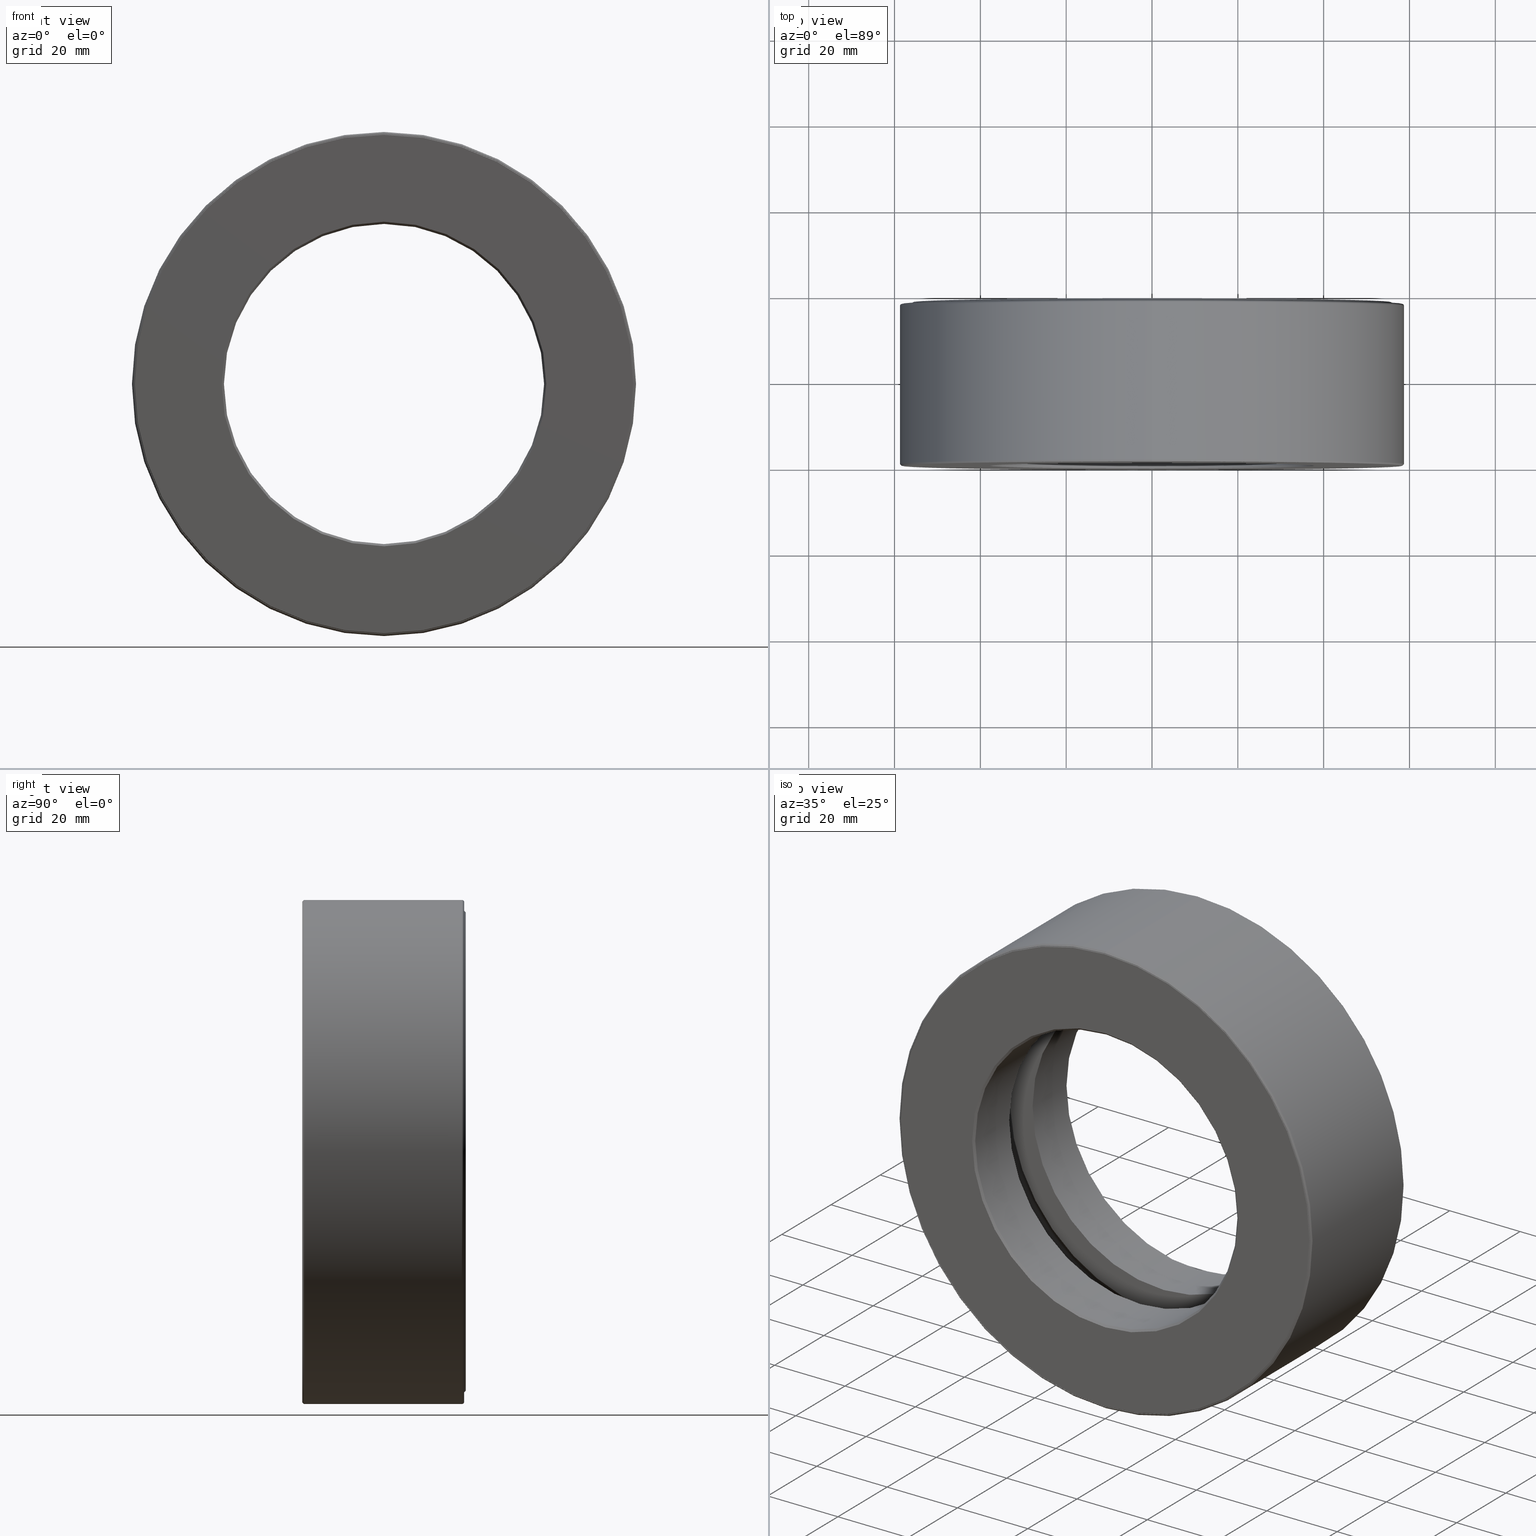
[diagram: canonical four-view strip — front | top / right | iso, engineering-drawing reading convention]
A machine part, canonical four-view strip (front | top / right | iso — engineering-drawing reading convention). The complete STEP part file that produces these views, byte-faithful:
ISO-10303-21;
HEADER;
FILE_DESCRIPTION (( 'STEP AP203' ),
    '1' );
FILE_NAME ('T-100-43.step',
    '2016-06-29T18:27:38',
    ( '' ),
    ( '' ),
    'SwSTEP 2.0',
    'SolidWorks 2016',
    '' );
FILE_SCHEMA (( 'CONFIG_CONTROL_DESIGN' ));
ENDSEC;

DATA;
#1 = CARTESIAN_POINT ( 'NONE',  ( -2.064512915657944700E-014, 0.7499999999999998900, -1.970999999999999900 ) ) ;
#2 = ORIENTED_EDGE ( 'NONE', *, *, #28, .F. ) ;
#3 = CALENDAR_DATE ( 2016, 29, 6 ) ;
#4 = DIRECTION ( 'NONE',  ( 0.0000000000000000000, 0.0000000000000000000, 1.000000000000000000 ) ) ;
#5 = DIRECTION ( 'NONE',  ( -0.0000000000000000000, 1.000000000000000000, -0.0000000000000000000 ) ) ;
#6 = VERTEX_POINT ( 'NONE', #209 ) ;
#7 = AXIS2_PLACEMENT_3D ( 'NONE', #354, #162, #494 ) ;
#8 = ORIENTED_EDGE ( 'NONE', *, *, #512, .F. ) ;
#9 = DIRECTION ( 'NONE',  ( 0.0000000000000000000, -1.000000000000000000, 0.0000000000000000000 ) ) ;
#10 = DIRECTION ( 'NONE',  ( 0.0000000000000000000, 0.0000000000000000000, 1.000000000000000000 ) ) ;
#11 = LOCAL_TIME ( 14, 27, 38.00000000000000000, #121 ) ;
#12 = CIRCLE ( 'NONE', #32, 2.232499999999999900 ) ;
#13 = PLANE ( 'NONE',  #533 ) ;
#14 = DIRECTION ( 'NONE',  ( -0.0000000000000000000, 1.000000000000000000, -0.0000000000000000000 ) ) ;
#15 = DIRECTION ( 'NONE',  ( -0.0000000000000000000, 1.000000000000000000, -0.0000000000000000000 ) ) ;
#16 = ADVANCED_BREP_SHAPE_REPRESENTATION ( 'T-100-43', ( #220, #602, #444, #552, #90, #451, #251 ), #270 ) ;
#17 = ADVANCED_FACE ( 'NONE', ( ), #101, .T. ) ;
#18 = DIRECTION ( 'NONE',  ( 0.0000000000000000000, 0.0000000000000000000, 1.000000000000000000 ) ) ;
#19 = PRODUCT_DEFINITION_SHAPE ( 'NONE', 'NONE',  #361 ) ;
#20 = FACE_OUTER_BOUND ( 'NONE', #373, .T. ) ;
#21 = CARTESIAN_POINT ( 'NONE',  ( 0.0000000000000000000, 0.0000000000000000000, 0.0000000000000000000 ) ) ;
#22 = EDGE_LOOP ( 'NONE', ( #310 ) ) ;
#23 = DIRECTION ( 'NONE',  ( 0.0000000000000000000, 0.0000000000000000000, 1.000000000000000000 ) ) ;
#24 = ORIENTED_EDGE ( 'NONE', *, *, #495, .T. ) ;
#25 = CC_DESIGN_PERSON_AND_ORGANIZATION_ASSIGNMENT ( #262, #226, ( #287 ) ) ;
#26 = FACE_BOUND ( 'NONE', #498, .T. ) ;
#27 = FACE_BOUND ( 'NONE', #583, .T. ) ;
#28 = EDGE_CURVE ( 'NONE', #504, #504, #148, .T. ) ;
#29 = PERSON_AND_ORGANIZATION ( #197, #545 ) ;
#30 = VERTEX_POINT ( 'NONE', #124 ) ;
#31 = CARTESIAN_POINT ( 'NONE',  ( 0.0000000000000000000, 1.484999999999999900, 2.292500000000000000 ) ) ;
#32 = AXIS2_PLACEMENT_3D ( 'NONE', #72, #456, #549 ) ;
#33 = EDGE_LOOP ( 'NONE', ( #537 ) ) ;
#34 = CARTESIAN_POINT ( 'NONE',  ( 0.0000000000000000000, 1.412000000000000600, 2.285499999999999400 ) ) ;
#35 = DIRECTION ( 'NONE',  ( -0.0000000000000000000, 1.000000000000000000, -0.0000000000000000000 ) ) ;
#36 = CARTESIAN_POINT ( 'NONE',  ( 0.0000000000000000000, 0.005000000000000682700, 2.292499999999999500 ) ) ;
#37 = CIRCLE ( 'NONE', #40, 1.720999999999999900 ) ;
#38 = FACE_BOUND ( 'NONE', #125, .T. ) ;
#39 = ADVANCED_FACE ( 'NONE', ( #606, #172 ), #447, .F. ) ;
#40 = AXIS2_PLACEMENT_3D ( 'NONE', #576, #530, #437 ) ;
#41 = FACE_OUTER_BOUND ( 'NONE', #343, .T. ) ;
#42 = ORIENTED_EDGE ( 'NONE', *, *, #318, .F. ) ;
#43 = PLANE ( 'NONE',  #455 ) ;
#44 = EDGE_LOOP ( 'NONE', ( #406 ) ) ;
#45 = ADVANCED_FACE ( 'NONE', ( #263, #200 ), #321, .T. ) ;
#46 = DIRECTION ( 'NONE',  ( 0.0000000000000000000, 0.0000000000000000000, 1.000000000000000000 ) ) ;
#47 = PERSON_AND_ORGANIZATION_ROLE ( 'design_supplier' ) ;
#48 = ADVANCED_FACE ( 'NONE', ( #75, #27 ), #43, .T. ) ;
#49 = CARTESIAN_POINT ( 'NONE',  ( 0.0000000000000000000, 1.484999999999999900, 0.0000000000000000000 ) ) ;
#50 = AXIS2_PLACEMENT_3D ( 'NONE', #145, #54, #149 ) ;
#51 = FACE_OUTER_BOUND ( 'NONE', #22, .T. ) ;
#52 = AXIS2_PLACEMENT_3D ( 'NONE', #524, #158, #196 ) ;
#53 = CLOSED_SHELL ( 'NONE', ( #17 ) ) ;
#54 = DIRECTION ( 'NONE',  ( -0.0000000000000000000, 1.000000000000000000, -0.0000000000000000000 ) ) ;
#55 = APPROVAL_DATE_TIME ( #116, #459 ) ;
#56 = EDGE_CURVE ( 'NONE', #313, #313, #128, .T. ) ;
#57 = VERTEX_POINT ( 'NONE', #269 ) ;
#58 = FACE_OUTER_BOUND ( 'NONE', #559, .T. ) ;
#59 = EDGE_LOOP ( 'NONE', ( #140 ) ) ;
#60 = EDGE_LOOP ( 'NONE', ( #389 ) ) ;
#61 = DIRECTION ( 'NONE',  ( -0.0000000000000000000, 1.000000000000000000, -0.0000000000000000000 ) ) ;
#62 = DIRECTION ( 'NONE',  ( 0.0000000000000000000, 0.0000000000000000000, 1.000000000000000000 ) ) ;
#63 = FACE_BOUND ( 'NONE', #322, .T. ) ;
#64 = ORIENTED_EDGE ( 'NONE', *, *, #570, .T. ) ;
#65 = CARTESIAN_POINT ( 'NONE',  ( 0.0000000000000000000, 1.464999999999999900, 0.0000000000000000000 ) ) ;
#66 = CARTESIAN_POINT ( 'NONE',  ( 0.0000000000000000000, 0.7499999999999998900, 0.0000000000000000000 ) ) ;
#67 = VERTEX_POINT ( 'NONE', #36 ) ;
#68 = FACE_OUTER_BOUND ( 'NONE', #316, .T. ) ;
#69 = ORIENTED_EDGE ( 'NONE', *, *, #481, .F. ) ;
#70 = DIRECTION ( 'NONE',  ( -1.000000000000000000, 0.0000000000000000000, 3.491481338843134500E-015 ) ) ;
#71 = DIRECTION ( 'NONE',  ( 0.0000000000000000000, 0.0000000000000000000, 1.000000000000000000 ) ) ;
#72 = CARTESIAN_POINT ( 'NONE',  ( 0.0000000000000000000, 1.464999999999999900, 0.0000000000000000000 ) ) ;
#73 = CYLINDRICAL_SURFACE ( 'NONE', #330, 1.468750000000000000 ) ;
#74 = DIRECTION ( 'NONE',  ( -0.0000000000000000000, 1.000000000000000000, -0.0000000000000000000 ) ) ;
#75 = FACE_OUTER_BOUND ( 'NONE', #239, .T. ) ;
#76 =( LENGTH_UNIT ( ) NAMED_UNIT ( * ) SI_UNIT ( $, .METRE. ) );
#77 = AXIS2_PLACEMENT_3D ( 'NONE', #523, #15, #297 ) ;
#78 = EDGE_LOOP ( 'NONE', ( #479 ) ) ;
#79 =( NAMED_UNIT ( * ) SI_UNIT ( $, .STERADIAN. ) SOLID_ANGLE_UNIT ( ) );
#80 = AXIS2_PLACEMENT_3D ( 'NONE', #49, #232, #566 ) ;
#81 = CARTESIAN_POINT ( 'NONE',  ( 0.0000000000000000000, 0.02000000000000033300, 1.468749999999999800 ) ) ;
#82 = ADVANCED_FACE ( 'NONE', ( #58, #412 ), #236, .F. ) ;
#83 = FACE_BOUND ( 'NONE', #592, .T. ) ;
#84 = CIRCLE ( 'NONE', #104, 2.197499999999999800 ) ;
#85 = CLOSED_SHELL ( 'NONE', ( #132, #228, #324, #327, #414, #243, #478, #185, #553, #87, #39, #45, #82, #217, #288, #385 ) ) ;
#86 = DIRECTION ( 'NONE',  ( 0.0000000000000000000, 0.0000000000000000000, 1.000000000000000000 ) ) ;
#87 = ADVANCED_FACE ( 'NONE', ( #462, #514 ), #13, .F. ) ;
#88 = ORIENTED_EDGE ( 'NONE', *, *, #249, .T. ) ;
#89 = EDGE_LOOP ( 'NONE', ( #42 ) ) ;
#90 = MANIFOLD_SOLID_BREP ( 'BALLS[2]', #527 ) ;
#91 = EDGE_CURVE ( 'NONE', #174, #174, #314, .T. ) ;
#92 = DIRECTION ( 'NONE',  ( 0.0000000000000000000, 0.0000000000000000000, 1.000000000000000000 ) ) ;
#93 = DIRECTION ( 'NONE',  ( 0.0000000000000000000, 0.0000000000000000000, 1.000000000000000000 ) ) ;
#94 = APPROVAL ( #328, 'UNSPECIFIED' ) ;
#95 = CALENDAR_DATE ( 2016, 29, 6 ) ;
#96 = FACE_OUTER_BOUND ( 'NONE', #257, .T. ) ;
#97 = DIRECTION ( 'NONE',  ( 0.0000000000000000000, 0.0000000000000000000, -1.000000000000000000 ) ) ;
#98 = ORIENTED_EDGE ( 'NONE', *, *, #284, .F. ) ;
#99 = CARTESIAN_POINT ( 'NONE',  ( 0.0000000000000000000, 0.02000000000000033300, 0.0000000000000000000 ) ) ;
#100 = FACE_OUTER_BOUND ( 'NONE', #307, .T. ) ;
#101 = SPHERICAL_SURFACE ( 'NONE', #380, 0.3125000000000000000 ) ;
#102 = ORIENTED_EDGE ( 'NONE', *, *, #345, .T. ) ;
#103 = DIRECTION ( 'NONE',  ( -0.0000000000000000000, 1.000000000000000000, -0.0000000000000000000 ) ) ;
#104 = AXIS2_PLACEMENT_3D ( 'NONE', #305, #528, #23 ) ;
#105 = DIRECTION ( 'NONE',  ( -0.0000000000000000000, 1.000000000000000000, -0.0000000000000000000 ) ) ;
#106 = ORIENTED_EDGE ( 'NONE', *, *, #333, .T. ) ;
#107 = PLANE ( 'NONE',  #590 ) ;
#108 = VERTEX_POINT ( 'NONE', #413 ) ;
#109 = DIRECTION ( 'NONE',  ( -0.0000000000000000000, 1.000000000000000000, -0.0000000000000000000 ) ) ;
#110 = FACE_OUTER_BOUND ( 'NONE', #567, .T. ) ;
#111 = CARTESIAN_POINT ( 'NONE',  ( 0.0000000000000000000, 1.500000000000000200, 0.0000000000000000000 ) ) ;
#112 = EDGE_LOOP ( 'NONE', ( #8 ) ) ;
#113 = AXIS2_PLACEMENT_3D ( 'NONE', #252, #253, #62 ) ;
#114 = CARTESIAN_POINT ( 'NONE',  ( 0.0000000000000000000, 1.464999999999999900, 0.0000000000000000000 ) ) ;
#115 = DIRECTION ( 'NONE',  ( 0.0000000000000000000, 0.0000000000000000000, 1.000000000000000000 ) ) ;
#116 = DATE_AND_TIME ( #344, #234 ) ;
#117 = VERTEX_POINT ( 'NONE', #596 ) ;
#118 = CONICAL_SURFACE ( 'NONE', #515, 2.197499999999999800, 0.7853981633974498300 ) ;
#119 = FACE_BOUND ( 'NONE', #486, .T. ) ;
#120 = CARTESIAN_POINT ( 'NONE',  ( 0.0000000000000000000, 0.5624999999999998900, 0.0000000000000000000 ) ) ;
#121 = COORDINATED_UNIVERSAL_TIME_OFFSET ( 5, 0, .BEHIND. ) ;
#122 = FACE_BOUND ( 'NONE', #178, .T. ) ;
#123 = AXIS2_PLACEMENT_3D ( 'NONE', #560, #177, #71 ) ;
#124 = CARTESIAN_POINT ( 'NONE',  ( 0.0000000000000000000, 0.9374999999999998900, 2.221000000000000100 ) ) ;
#125 = EDGE_LOOP ( 'NONE', ( #473 ) ) ;
#126 = VERTEX_POINT ( 'NONE', #408 ) ;
#127 = CIRCLE ( 'NONE', #50, 2.221000000000000100 ) ;
#128 = CIRCLE ( 'NONE', #425, 2.287499999999999600 ) ;
#129 = ADVANCED_FACE ( 'NONE', ( ), #184, .T. ) ;
#130 = CARTESIAN_POINT ( 'NONE',  ( 0.0000000000000000000, -1.259211184579621700E-016, 2.297499999999999900 ) ) ;
#131 = PERSON_AND_ORGANIZATION_ROLE ( 'classification_officer' ) ;
#132 = ADVANCED_FACE ( 'NONE', ( #477, #165 ), #341, .F. ) ;
#133 = DIRECTION ( 'NONE',  ( -0.0000000000000000000, 1.000000000000000000, -0.0000000000000000000 ) ) ;
#134 = AXIS2_PLACEMENT_3D ( 'NONE', #448, #445, #260 ) ;
#135 = PERSON_AND_ORGANIZATION ( #197, #545 ) ;
#136 = CIRCLE ( 'NONE', #143, 2.292500000000000000 ) ;
#137 = ORIENTED_EDGE ( 'NONE', *, *, #304, .T. ) ;
#138 = DIRECTION ( 'NONE',  ( 0.0000000000000000000, 0.0000000000000000000, 1.000000000000000000 ) ) ;
#139 = DIRECTION ( 'NONE',  ( -0.0000000000000000000, 1.000000000000000000, 0.0000000000000000000 ) ) ;
#140 = ORIENTED_EDGE ( 'NONE', *, *, #575, .T. ) ;
#141 = DIRECTION ( 'NONE',  ( 0.0000000000000000000, 0.0000000000000000000, -1.000000000000000000 ) ) ;
#142 = PLANE ( 'NONE',  #603 ) ;
#143 = AXIS2_PLACEMENT_3D ( 'NONE', #169, #546, #138 ) ;
#144 = COORDINATED_UNIVERSAL_TIME_OFFSET ( 5, 0, .BEHIND. ) ;
#145 = CARTESIAN_POINT ( 'NONE',  ( 0.0000000000000000000, 0.5624999999999998900, 0.0000000000000000000 ) ) ;
#146 = FACE_OUTER_BOUND ( 'NONE', #33, .T. ) ;
#147 = CARTESIAN_POINT ( 'NONE',  ( -3.637515780592931200E-032, -6.242699516771851800E-017, 0.0000000000000000000 ) ) ;
#148 = CIRCLE ( 'NONE', #438, 1.488750000000000200 ) ;
#149 = DIRECTION ( 'NONE',  ( 0.0000000000000000000, 0.0000000000000000000, 1.000000000000000000 ) ) ;
#150 = CARTESIAN_POINT ( 'NONE',  ( 0.0000000000000000000, 1.484999999999999900, 2.232499999999999900 ) ) ;
#151 = EDGE_CURVE ( 'NONE', #555, #555, #371, .T. ) ;
#152 = CARTESIAN_POINT ( 'NONE',  ( 1.985354646558334900E-015, 0.9375000000000000000, 0.0000000000000000000 ) ) ;
#153 = PERSON_AND_ORGANIZATION ( #197, #545 ) ;
#154 = CONICAL_SURFACE ( 'NONE', #311, 1.468750000000000000, 0.7853981633974482800 ) ;
#155 = CARTESIAN_POINT ( 'NONE',  ( 0.0000000000000000000, 0.0000000000000000000, 0.0000000000000000000 ) ) ;
#156 = PRODUCT ( 'T-100-43', 'T-100-43', '', ( #461 ) ) ;
#157 = AXIS2_PLACEMENT_3D ( 'NONE', #21, #61, #295 ) ;
#158 = DIRECTION ( 'NONE',  ( -0.0000000000000000000, 1.000000000000000000, -0.0000000000000000000 ) ) ;
#159 = ORIENTED_EDGE ( 'NONE', *, *, #245, .F. ) ;
#160 = DIRECTION ( 'NONE',  ( 0.0000000000000000000, 0.0000000000000000000, 1.000000000000000000 ) ) ;
#161 = DIRECTION ( 'NONE',  ( -0.0000000000000000000, 1.000000000000000000, -0.0000000000000000000 ) ) ;
#162 = DIRECTION ( 'NONE',  ( -0.0000000000000000000, 1.000000000000000000, -0.0000000000000000000 ) ) ;
#163 = DIRECTION ( 'NONE',  ( 0.0000000000000000000, -1.000000000000000000, 0.0000000000000000000 ) ) ;
#164 = CARTESIAN_POINT ( 'NONE',  ( 0.0000000000000000000, 0.5625000000000001100, 0.0000000000000000000 ) ) ;
#165 = FACE_OUTER_BOUND ( 'NONE', #195, .T. ) ;
#166 = ORIENTED_EDGE ( 'NONE', *, *, #56, .T. ) ;
#167 = ORIENTED_EDGE ( 'NONE', *, *, #407, .F. ) ;
#168 = ORIENTED_EDGE ( 'NONE', *, *, #210, .T. ) ;
#169 = CARTESIAN_POINT ( 'NONE',  ( 0.0000000000000000000, 1.484999999999999900, 0.0000000000000000000 ) ) ;
#170 = APPROVAL_PERSON_ORGANIZATION ( #362, #94, #510 ) ;
#171 = FACE_OUTER_BOUND ( 'NONE', #364, .T. ) ;
#172 = FACE_OUTER_BOUND ( 'NONE', #440, .T. ) ;
#173 = DIRECTION ( 'NONE',  ( 0.0000000000000000000, 0.0000000000000000000, 1.000000000000000000 ) ) ;
#174 = VERTEX_POINT ( 'NONE', #150 ) ;
#175 = VERTEX_POINT ( 'NONE', #266 ) ;
#176 = DIRECTION ( 'NONE',  ( 1.000000000000000000, 0.0000000000000000000, -1.047444401652940000E-014 ) ) ;
#177 = DIRECTION ( 'NONE',  ( -0.0000000000000000000, 1.000000000000000000, -0.0000000000000000000 ) ) ;
#178 = EDGE_LOOP ( 'NONE', ( #106 ) ) ;
#179 = AXIS2_PLACEMENT_3D ( 'NONE', #427, #14, #10 ) ;
#180 = DIRECTION ( 'NONE',  ( -3.491481338843134500E-015, 0.0000000000000000000, -1.000000000000000000 ) ) ;
#181 = CARTESIAN_POINT ( 'NONE',  ( 0.0000000000000000000, -1.248539903354370400E-016, 0.0000000000000000000 ) ) ;
#182 = VERTEX_POINT ( 'NONE', #212 ) ;
#183 = CYLINDRICAL_SURFACE ( 'NONE', #585, 2.292499999999999500 ) ;
#184 = SPHERICAL_SURFACE ( 'NONE', #224, 0.3125000000000000000 ) ;
#185 = ADVANCED_FACE ( 'NONE', ( #356, #588 ), #571, .T. ) ;
#186 = DIRECTION ( 'NONE',  ( 0.0000000000000000000, 0.0000000000000000000, 1.000000000000000000 ) ) ;
#187 = EDGE_LOOP ( 'NONE', ( #102 ) ) ;
#188 = CARTESIAN_POINT ( 'NONE',  ( 0.0000000000000000000, 1.500000000000000200, 0.0000000000000000000 ) ) ;
#189 = CARTESIAN_POINT ( 'NONE',  ( 0.0000000000000000000, 0.7499999999999998900, 0.0000000000000000000 ) ) ;
#190 = FACE_OUTER_BOUND ( 'NONE', #449, .T. ) ;
#191 = CONICAL_SURFACE ( 'NONE', #261, 1.468749999999999800, 0.7853981633974415100 ) ;
#192 = AXIS2_PLACEMENT_3D ( 'NONE', #471, #230, #292 ) ;
#193 = DIRECTION ( 'NONE',  ( 0.0000000000000000000, 0.0000000000000000000, 1.000000000000000000 ) ) ;
#194 = EDGE_LOOP ( 'NONE', ( #167 ) ) ;
#195 = EDGE_LOOP ( 'NONE', ( #64 ) ) ;
#196 = DIRECTION ( 'NONE',  ( 0.0000000000000000000, 0.0000000000000000000, 1.000000000000000000 ) ) ;
#197 = PERSON ( 'UNSPECIFIED', 'UNSPECIFIED', 'UNSPECIFIED', ('UNSPECIFIED'), ('UNSPECIFIED'), ('UNSPECIFIED') ) ;
#198 = VERTEX_POINT ( 'NONE', #363 ) ;
#199 = CIRCLE ( 'NONE', #233, 2.312500000000000000 ) ;
#200 = FACE_BOUND ( 'NONE', #540, .T. ) ;
#201 = ORIENTED_EDGE ( 'NONE', *, *, #570, .F. ) ;
#202 = EDGE_LOOP ( 'NONE', ( #418 ) ) ;
#203 = PLANE ( 'NONE',  #225 ) ;
#204 = VERTEX_POINT ( 'NONE', #81 ) ;
#205 = DIRECTION ( 'NONE',  ( 0.0000000000000000000, -1.000000000000000000, 0.0000000000000000000 ) ) ;
#206 = FACE_OUTER_BOUND ( 'NONE', #507, .T. ) ;
#207 = CIRCLE ( 'NONE', #240, 2.297499999999999900 ) ;
#208 = EDGE_LOOP ( 'NONE', ( #547 ) ) ;
#209 = CARTESIAN_POINT ( 'NONE',  ( 0.0000000000000000000, -1.252200340395746800E-016, 2.292499999999999500 ) ) ;
#210 = EDGE_CURVE ( 'NONE', #434, #434, #395, .T. ) ;
#211 = LOCAL_TIME ( 14, 27, 38.00000000000000000, #347 ) ;
#212 = CARTESIAN_POINT ( 'NONE',  ( 0.0000000000000000000, 0.5624999999999998900, 2.292499999999999500 ) ) ;
#213 = AXIS2_PLACEMENT_3D ( 'NONE', #423, #70, #180 ) ;
#214 = TOROIDAL_SURFACE ( 'NONE', #394, 2.292500000000000000, 0.02000000000000005900 ) ;
#215 = EDGE_LOOP ( 'NONE', ( #201 ) ) ;
#216 = CARTESIAN_POINT ( 'NONE',  ( 0.0000000000000000000, 1.464999999999999900, 2.292499999999999500 ) ) ;
#217 = ADVANCED_FACE ( 'NONE', ( #505, #119 ), #191, .F. ) ;
#218 = CARTESIAN_POINT ( 'NONE',  ( 0.0000000000000000000, 0.9374999999999998900, 1.720999999999999900 ) ) ;
#219 = CIRCLE ( 'NONE', #123, 2.285499999999999400 ) ;
#220 = MANIFOLD_SOLID_BREP ( 'Revolve2[1]', #85 ) ;
#221 = ORIENTED_EDGE ( 'NONE', *, *, #265, .T. ) ;
#222 = DATE_TIME_ROLE ( 'creation_date' ) ;
#223 = ORIENTED_EDGE ( 'NONE', *, *, #538, .F. ) ;
#224 = AXIS2_PLACEMENT_3D ( 'NONE', #286, #97, #339 ) ;
#225 = AXIS2_PLACEMENT_3D ( 'NONE', #403, #205, #586 ) ;
#226 = PERSON_AND_ORGANIZATION_ROLE ( 'creator' ) ;
#227 = CALENDAR_DATE ( 2016, 29, 6 ) ;
#228 = ADVANCED_FACE ( 'NONE', ( #536, #51 ), #142, .F. ) ;
#229 = PERSON_AND_ORGANIZATION_ROLE ( 'creator' ) ;
#230 = DIRECTION ( 'NONE',  ( -0.0000000000000000000, 1.000000000000000000, -0.0000000000000000000 ) ) ;
#231 = CLOSED_SHELL ( 'NONE', ( #129 ) ) ;
#232 = DIRECTION ( 'NONE',  ( 0.0000000000000000000, -1.000000000000000000, 0.0000000000000000000 ) ) ;
#233 = AXIS2_PLACEMENT_3D ( 'NONE', #377, #74, #92 ) ;
#234 = LOCAL_TIME ( 14, 27, 38.00000000000000000, #482 ) ;
#235 = CARTESIAN_POINT ( 'NONE',  ( 0.0000000000000000000, 1.500000000000000200, 1.488750000000000200 ) ) ;
#236 = PLANE ( 'NONE',  #392 ) ;
#237 = PERSON_AND_ORGANIZATION ( #197, #545 ) ;
#238 = SPHERICAL_SURFACE ( 'NONE', #134, 0.3125000000000000000 ) ;
#239 = EDGE_LOOP ( 'NONE', ( #518 ) ) ;
#240 = AXIS2_PLACEMENT_3D ( 'NONE', #578, #103, #160 ) ;
#241 = EDGE_LOOP ( 'NONE', ( #516 ) ) ;
#242 = CARTESIAN_POINT ( 'NONE',  ( 0.0000000000000000000, 1.479999999999999800, 0.0000000000000000000 ) ) ;
#243 = ADVANCED_FACE ( 'NONE', ( #38, #41 ), #289, .F. ) ;
#244 = DIRECTION ( 'NONE',  ( -0.0000000000000000000, 1.000000000000000000, -0.0000000000000000000 ) ) ;
#245 = EDGE_CURVE ( 'NONE', #57, #57, #490, .T. ) ;
#246 = CARTESIAN_POINT ( 'NONE',  ( 0.0000000000000000000, 1.479999999999999800, 0.0000000000000000000 ) ) ;
#247 = PERSON_AND_ORGANIZATION ( #197, #545 ) ;
#248 = CARTESIAN_POINT ( 'NONE',  ( 0.0000000000000000000, 0.0000000000000000000, 0.0000000000000000000 ) ) ;
#249 = EDGE_CURVE ( 'NONE', #67, #67, #525, .T. ) ;
#250 = FACE_OUTER_BOUND ( 'NONE', #337, .T. ) ;
#251 = AXIS2_PLACEMENT_3D ( 'NONE', #568, #601, #541 ) ;
#252 = CARTESIAN_POINT ( 'NONE',  ( 0.0000000000000000000, -1.252200340395746800E-016, 0.0000000000000000000 ) ) ;
#253 = DIRECTION ( 'NONE',  ( -0.0000000000000000000, 1.000000000000000000, -0.0000000000000000000 ) ) ;
#254 = PLANE ( 'NONE',  #493 ) ;
#255 = VERTEX_POINT ( 'NONE', #31 ) ;
#256 = FACE_OUTER_BOUND ( 'NONE', #194, .T. ) ;
#257 = EDGE_LOOP ( 'NONE', ( #500 ) ) ;
#258 = CARTESIAN_POINT ( 'NONE',  ( 0.0000000000000000000, 0.9374999999999998900, 0.0000000000000000000 ) ) ;
#259 = CC_DESIGN_SECURITY_CLASSIFICATION ( #338, ( #287 ) ) ;
#260 = DIRECTION ( 'NONE',  ( -1.000000000000000000, 0.0000000000000000000, 6.982962677686269100E-015 ) ) ;
#261 = AXIS2_PLACEMENT_3D ( 'NONE', #99, #426, #141 ) ;
#262 = PERSON_AND_ORGANIZATION ( #197, #545 ) ;
#263 = FACE_OUTER_BOUND ( 'NONE', #299, .T. ) ;
#264 = PERSON_AND_ORGANIZATION_ROLE ( 'design_owner' ) ;
#265 = EDGE_CURVE ( 'NONE', #535, #535, #207, .T. ) ;
#266 = CARTESIAN_POINT ( 'NONE',  ( 0.0000000000000000000, 1.500000000000000200, 2.197499999999999800 ) ) ;
#267 = ORIENTED_EDGE ( 'NONE', *, *, #210, .F. ) ;
#268 = VERTEX_POINT ( 'NONE', #598 ) ;
#269 = CARTESIAN_POINT ( 'NONE',  ( 0.0000000000000000000, 0.9375000000000000000, 2.285499999999999400 ) ) ;
#270 =( GEOMETRIC_REPRESENTATION_CONTEXT ( 3 ) GLOBAL_UNCERTAINTY_ASSIGNED_CONTEXT ( ( #346 ) ) GLOBAL_UNIT_ASSIGNED_CONTEXT ( ( #410, #415, #79 ) ) REPRESENTATION_CONTEXT ( 'NONE', 'WORKASPACE' ) );
#271 = FACE_OUTER_BOUND ( 'NONE', #285, .T. ) ;
#272 = CARTESIAN_POINT ( 'NONE',  ( 0.0000000000000000000, -1.248539903354370400E-016, 2.287499999999999600 ) ) ;
#273 = DIRECTION ( 'NONE',  ( 1.047444401652940000E-014, 0.0000000000000000000, 1.000000000000000000 ) ) ;
#274 = ADVANCED_FACE ( 'NONE', ( #557, #326 ), #154, .F. ) ;
#275 = DESIGN_CONTEXT ( 'detailed design', #593, 'design' ) ;
#276 = APPROVAL_ROLE ( '' ) ;
#277 = APPROVAL_PERSON_ORGANIZATION ( #511, #459, #276 ) ;
#278 = EDGE_CURVE ( 'NONE', #175, #175, #84, .T. ) ;
#279 = CARTESIAN_POINT ( 'NONE',  ( 0.0000000000000000000, -1.259211184579621700E-016, 0.0000000000000000000 ) ) ;
#280 = ADVANCED_FACE ( 'NONE', ( #68, #282 ), #348, .F. ) ;
#281 = CARTESIAN_POINT ( 'NONE',  ( 0.0000000000000000000, 1.500000000000000200, 0.0000000000000000000 ) ) ;
#282 = FACE_OUTER_BOUND ( 'NONE', #358, .T. ) ;
#283 = ORIENTED_EDGE ( 'NONE', *, *, #249, .F. ) ;
#284 = EDGE_CURVE ( 'NONE', #334, #334, #405, .T. ) ;
#285 = EDGE_LOOP ( 'NONE', ( #331 ) ) ;
#286 = CARTESIAN_POINT ( 'NONE',  ( -1.970999999999999900, 0.7499999999999998900, 0.0000000000000000000 ) ) ;
#287 = PRODUCT_DEFINITION_FORMATION_WITH_SPECIFIED_SOURCE ( 'ANY', '', #156, .NOT_KNOWN. ) ;
#288 = ADVANCED_FACE ( 'NONE', ( #435, #206 ), #73, .F. ) ;
#289 = PLANE ( 'NONE',  #80 ) ;
#290 = DATE_AND_TIME ( #387, #532 ) ;
#291 = TOROIDAL_SURFACE ( 'NONE', #599, 1.970999999999999900, 0.3125000000000000600 ) ;
#292 = DIRECTION ( 'NONE',  ( 0.0000000000000000000, 0.0000000000000000000, 1.000000000000000000 ) ) ;
#293 = DIRECTION ( 'NONE',  ( 0.0000000000000000000, 0.0000000000000000000, 1.000000000000000000 ) ) ;
#294 = ORIENTED_EDGE ( 'NONE', *, *, #304, .F. ) ;
#295 = DIRECTION ( 'NONE',  ( 0.0000000000000000000, 0.0000000000000000000, 1.000000000000000000 ) ) ;
#296 = ADVANCED_FACE ( 'NONE', ( #122, #171 ), #107, .T. ) ;
#297 = DIRECTION ( 'NONE',  ( 0.0000000000000000000, 0.0000000000000000000, 1.000000000000000000 ) ) ;
#298 = AXIS2_PLACEMENT_3D ( 'NONE', #390, #475, #186 ) ;
#299 = EDGE_LOOP ( 'NONE', ( #283 ) ) ;
#300 = AXIS2_PLACEMENT_3D ( 'NONE', #404, #355, #398 ) ;
#301 = DIRECTION ( 'NONE',  ( 0.0000000000000000000, -1.000000000000000000, 0.0000000000000000000 ) ) ;
#302 = DIRECTION ( 'NONE',  ( 0.0000000000000000000, -0.0000000000000000000, -1.000000000000000000 ) ) ;
#303 = EDGE_LOOP ( 'NONE', ( #396 ) ) ;
#304 = EDGE_CURVE ( 'NONE', #587, #587, #37, .T. ) ;
#305 = CARTESIAN_POINT ( 'NONE',  ( 0.0000000000000000000, 1.500000000000000200, 0.0000000000000000000 ) ) ;
#306 = FACE_OUTER_BOUND ( 'NONE', #509, .T. ) ;
#307 = EDGE_LOOP ( 'NONE', ( #137 ) ) ;
#308 = CC_DESIGN_PERSON_AND_ORGANIZATION_ASSIGNMENT ( #29, #47, ( #287 ) ) ;
#309 = DIRECTION ( 'NONE',  ( -0.0000000000000000000, 1.000000000000000000, 0.0000000000000000000 ) ) ;
#310 = ORIENTED_EDGE ( 'NONE', *, *, #407, .T. ) ;
#311 = AXIS2_PLACEMENT_3D ( 'NONE', #246, #480, #439 ) ;
#312 = CARTESIAN_POINT ( 'NONE',  ( 0.0000000000000000000, 0.0000000000000000000, 0.0000000000000000000 ) ) ;
#313 = VERTEX_POINT ( 'NONE', #272 ) ;
#314 = CIRCLE ( 'NONE', #417, 2.232499999999999900 ) ;
#315 = EDGE_CURVE ( 'NONE', #204, #204, #484, .T. ) ;
#316 = EDGE_LOOP ( 'NONE', ( #168 ) ) ;
#317 = APPLICATION_PROTOCOL_DEFINITION ( 'international standard', 'config_control_design', 1994, #593 ) ;
#318 = EDGE_CURVE ( 'NONE', #6, #6, #320, .T. ) ;
#319 = APPROVAL ( #563, 'UNSPECIFIED' ) ;
#320 = CIRCLE ( 'NONE', #113, 2.292499999999999500 ) ;
#321 = CONICAL_SURFACE ( 'NONE', #466, 2.287499999999999600, 0.7853981633973758900 ) ;
#322 = EDGE_LOOP ( 'NONE', ( #350 ) ) ;
#323 = CARTESIAN_POINT ( 'NONE',  ( 0.0000000000000000000, -1.248539903354370400E-016, 0.0000000000000000000 ) ) ;
#324 = ADVANCED_FACE ( 'NONE', ( #256, #250 ), #183, .F. ) ;
#325 = FACE_OUTER_BOUND ( 'NONE', #60, .T. ) ;
#326 = FACE_BOUND ( 'NONE', #491, .T. ) ;
#327 = ADVANCED_FACE ( 'NONE', ( #595, #428 ), #254, .F. ) ;
#328 = APPROVAL_STATUS ( 'not_yet_approved' ) ;
#329 = AXIS2_PLACEMENT_3D ( 'NONE', #189, #432, #46 ) ;
#330 = AXIS2_PLACEMENT_3D ( 'NONE', #248, #244, #18 ) ;
#331 = ORIENTED_EDGE ( 'NONE', *, *, #245, .T. ) ;
#332 = CARTESIAN_POINT ( 'NONE',  ( -2.750387431685207200E-032, -1.255705762487684200E-016, 0.0000000000000000000 ) ) ;
#333 = EDGE_CURVE ( 'NONE', #30, #30, #340, .T. ) ;
#334 = VERTEX_POINT ( 'NONE', #506 ) ;
#335 = CIRCLE ( 'NONE', #522, 1.488749999999999800 ) ;
#336 = DIRECTION ( 'NONE',  ( 0.0000000000000000000, -0.0000000000000000000, -1.000000000000000000 ) ) ;
#337 = EDGE_LOOP ( 'NONE', ( #352 ) ) ;
#338 = SECURITY_CLASSIFICATION ( '', '', #381 ) ;
#339 = DIRECTION ( 'NONE',  ( 1.000000000000000000, 0.0000000000000000000, 0.0000000000000000000 ) ) ;
#340 = CIRCLE ( 'NONE', #542, 2.221000000000000100 ) ;
#341 = TOROIDAL_SURFACE ( 'NONE', #329, 1.970999999999999900, 0.3125000000000000000 ) ;
#342 = CARTESIAN_POINT ( 'NONE',  ( 0.0000000000000000000, 0.02000000000000033300, 0.0000000000000000000 ) ) ;
#343 = EDGE_LOOP ( 'NONE', ( #574 ) ) ;
#344 = CALENDAR_DATE ( 2016, 29, 6 ) ;
#345 = EDGE_CURVE ( 'NONE', #399, #399, #335, .T. ) ;
#346 = UNCERTAINTY_MEASURE_WITH_UNIT (LENGTH_MEASURE( 1.000000000000000100E-005 ), #410, 'distance_accuracy_value', 'NONE');
#347 = COORDINATED_UNIVERSAL_TIME_OFFSET ( 5, 0, .BEHIND. ) ;
#348 = CYLINDRICAL_SURFACE ( 'NONE', #157, 1.468750000000000000 ) ;
#349 = CC_DESIGN_APPROVAL ( #94, ( #361 ) ) ;
#350 = ORIENTED_EDGE ( 'NONE', *, *, #278, .F. ) ;
#351 = DIRECTION ( 'NONE',  ( 0.0000000000000000000, 0.0000000000000000000, 1.000000000000000000 ) ) ;
#352 = ORIENTED_EDGE ( 'NONE', *, *, #151, .T. ) ;
#353 = AXIS2_PLACEMENT_3D ( 'NONE', #242, #5, #517 ) ;
#354 = CARTESIAN_POINT ( 'NONE',  ( 0.0000000000000000000, 0.01499999999999997700, 0.0000000000000000000 ) ) ;
#355 = DIRECTION ( 'NONE',  ( -0.0000000000000000000, 1.000000000000000000, -0.0000000000000000000 ) ) ;
#356 = FACE_OUTER_BOUND ( 'NONE', #550, .T. ) ;
#357 = DIRECTION ( 'NONE',  ( -0.0000000000000000000, 1.000000000000000000, -0.0000000000000000000 ) ) ;
#358 = EDGE_LOOP ( 'NONE', ( #98 ) ) ;
#359 = DIRECTION ( 'NONE',  ( -0.0000000000000000000, 1.000000000000000000, -0.0000000000000000000 ) ) ;
#360 = AXIS2_PLACEMENT_3D ( 'NONE', #573, #433, #572 ) ;
#361 = PRODUCT_DEFINITION ( 'UNKNOWN', '', #287, #275 ) ;
#362 = PERSON_AND_ORGANIZATION ( #197, #545 ) ;
#363 = CARTESIAN_POINT ( 'NONE',  ( 0.0000000000000000000, 1.464999999999999900, 2.232499999999999900 ) ) ;
#364 = EDGE_LOOP ( 'NONE', ( #159 ) ) ;
#365 = DIRECTION ( 'NONE',  ( 0.0000000000000000000, 0.0000000000000000000, 1.000000000000000000 ) ) ;
#366 = EDGE_LOOP ( 'NONE', ( #383 ) ) ;
#367 = CARTESIAN_POINT ( 'NONE',  ( 0.0000000000000000000, 0.5624999999999998900, 2.221000000000000100 ) ) ;
#368 = CARTESIAN_POINT ( 'NONE',  ( 0.0000000000000000000, 0.0000000000000000000, 0.0000000000000000000 ) ) ;
#369 = AXIS2_PLACEMENT_3D ( 'NONE', #279, #35, #499 ) ;
#370 = LOCAL_TIME ( 14, 27, 38.00000000000000000, #487 ) ;
#371 = CIRCLE ( 'NONE', #192, 2.292499999999999500 ) ;
#372 = ADVANCED_FACE ( 'NONE', ( ), #238, .T. ) ;
#373 = EDGE_LOOP ( 'NONE', ( #24 ) ) ;
#374 = ORIENTED_EDGE ( 'NONE', *, *, #318, .T. ) ;
#375 = DIRECTION ( 'NONE',  ( -0.0000000000000000000, 1.000000000000000000, -0.0000000000000000000 ) ) ;
#376 = EDGE_CURVE ( 'NONE', #117, #117, #605, .T. ) ;
#377 = CARTESIAN_POINT ( 'NONE',  ( 0.0000000000000000000, 1.464999999999999900, 0.0000000000000000000 ) ) ;
#378 = CIRCLE ( 'NONE', #7, 2.312500000000000000 ) ;
#379 = DIRECTION ( 'NONE',  ( 0.0000000000000000000, 0.0000000000000000000, 1.000000000000000000 ) ) ;
#380 = AXIS2_PLACEMENT_3D ( 'NONE', #1, #176, #273 ) ;
#381 = SECURITY_CLASSIFICATION_LEVEL ( 'unclassified' ) ;
#382 = ADVANCED_FACE ( 'NONE', ( #20, #63 ), #118, .T. ) ;
#383 = ORIENTED_EDGE ( 'NONE', *, *, #28, .T. ) ;
#384 = DIRECTION ( 'NONE',  ( -0.0000000000000000000, 1.000000000000000000, -0.0000000000000000000 ) ) ;
#385 = ADVANCED_FACE ( 'NONE', ( #83, #446 ), #203, .F. ) ;
#386 = DIRECTION ( 'NONE',  ( 0.0000000000000000000, 0.0000000000000000000, 1.000000000000000000 ) ) ;
#387 = CALENDAR_DATE ( 2016, 29, 6 ) ;
#388 = CONICAL_SURFACE ( 'NONE', #369, 2.297499999999999900, 0.7853981633974440600 ) ;
#389 = ORIENTED_EDGE ( 'NONE', *, *, #575, .F. ) ;
#390 = CARTESIAN_POINT ( 'NONE',  ( 0.0000000000000000000, 0.0000000000000000000, 0.0000000000000000000 ) ) ;
#391 = DIRECTION ( 'NONE',  ( 0.0000000000000000000, -1.000000000000000000, 0.0000000000000000000 ) ) ;
#392 = AXIS2_PLACEMENT_3D ( 'NONE', #147, #474, #293 ) ;
#393 = APPROVAL_DATE_TIME ( #290, #94 ) ;
#394 = AXIS2_PLACEMENT_3D ( 'NONE', #114, #357, #539 ) ;
#395 = CIRCLE ( 'NONE', #353, 1.468750000000000000 ) ;
#396 = ORIENTED_EDGE ( 'NONE', *, *, #265, .F. ) ;
#397 = DIRECTION ( 'NONE',  ( 0.0000000000000000000, 0.0000000000000000000, 1.000000000000000000 ) ) ;
#398 = DIRECTION ( 'NONE',  ( 0.0000000000000000000, 0.0000000000000000000, 1.000000000000000000 ) ) ;
#399 = VERTEX_POINT ( 'NONE', #501 ) ;
#400 = SPHERICAL_SURFACE ( 'NONE', #213, 0.3125000000000000000 ) ;
#401 = CC_DESIGN_PERSON_AND_ORGANIZATION_ASSIGNMENT ( #247, #131, ( #338 ) ) ;
#402 = DIRECTION ( 'NONE',  ( -0.0000000000000000000, 1.000000000000000000, -0.0000000000000000000 ) ) ;
#403 = CARTESIAN_POINT ( 'NONE',  ( 1.522957875556143200E-016, 0.5625000000000001100, 0.0000000000000000000 ) ) ;
#404 = CARTESIAN_POINT ( 'NONE',  ( 0.0000000000000000000, 0.0000000000000000000, 0.0000000000000000000 ) ) ;
#405 = CIRCLE ( 'NONE', #77, 1.468750000000000000 ) ;
#406 = ORIENTED_EDGE ( 'NONE', *, *, #376, .T. ) ;
#407 = EDGE_CURVE ( 'NONE', #182, #182, #469, .T. ) ;
#408 = CARTESIAN_POINT ( 'NONE',  ( 0.0000000000000000000, 1.464999999999999900, 2.312500000000000000 ) ) ;
#409 = LENGTH_MEASURE_WITH_UNIT ( LENGTH_MEASURE( 0.02539999999999999900 ), #76 );
#410 =( CONVERSION_BASED_UNIT ( 'INCH', #409 ) LENGTH_UNIT ( ) NAMED_UNIT ( #463 ) );
#411 = FACE_OUTER_BOUND ( 'NONE', #112, .T. ) ;
#412 = FACE_BOUND ( 'NONE', #187, .T. ) ;
#413 = CARTESIAN_POINT ( 'NONE',  ( 0.0000000000000000000, 0.01499999999999997700, 2.312500000000000000 ) ) ;
#414 = ADVANCED_FACE ( 'NONE', ( #325, #190 ), #476, .F. ) ;
#415 =( NAMED_UNIT ( * ) PLANE_ANGLE_UNIT ( ) SI_UNIT ( $, .RADIAN. ) );
#416 = APPROVAL_DATE_TIME ( #454, #319 ) ;
#417 = AXIS2_PLACEMENT_3D ( 'NONE', #561, #467, #386 ) ;
#418 = ORIENTED_EDGE ( 'NONE', *, *, #151, .F. ) ;
#419 = DIRECTION ( 'NONE',  ( 0.0000000000000000000, 0.0000000000000000000, 1.000000000000000000 ) ) ;
#420 = CC_DESIGN_PERSON_AND_ORGANIZATION_ASSIGNMENT ( #135, #229, ( #361 ) ) ;
#421 = DATE_TIME_ROLE ( 'classification_date' ) ;
#422 = ORIENTED_EDGE ( 'NONE', *, *, #315, .T. ) ;
#423 = CARTESIAN_POINT ( 'NONE',  ( 6.881709718859815600E-015, 0.7499999999999998900, 1.970999999999999900 ) ) ;
#424 = APPROVAL_STATUS ( 'not_yet_approved' ) ;
#425 = AXIS2_PLACEMENT_3D ( 'NONE', #181, #384, #379 ) ;
#426 = DIRECTION ( 'NONE',  ( 0.0000000000000000000, -1.000000000000000000, 0.0000000000000000000 ) ) ;
#427 = CARTESIAN_POINT ( 'NONE',  ( 0.0000000000000000000, 0.0000000000000000000, 0.0000000000000000000 ) ) ;
#428 = FACE_BOUND ( 'NONE', #59, .T. ) ;
#429 = ADVANCED_FACE ( 'NONE', ( #497, #110 ), #589, .T. ) ;
#430 = EDGE_LOOP ( 'NONE', ( #558 ) ) ;
#431 = CC_DESIGN_DATE_AND_TIME_ASSIGNMENT ( #554, #421, ( #338 ) ) ;
#432 = DIRECTION ( 'NONE',  ( -0.0000000000000000000, 1.000000000000000000, -0.0000000000000000000 ) ) ;
#433 = DIRECTION ( 'NONE',  ( -0.0000000000000000000, 1.000000000000000000, -0.0000000000000000000 ) ) ;
#434 = VERTEX_POINT ( 'NONE', #452 ) ;
#435 = FACE_OUTER_BOUND ( 'NONE', #208, .T. ) ;
#436 = ORIENTED_EDGE ( 'NONE', *, *, #91, .T. ) ;
#437 = DIRECTION ( 'NONE',  ( 0.0000000000000000000, 0.0000000000000000000, 1.000000000000000000 ) ) ;
#438 = AXIS2_PLACEMENT_3D ( 'NONE', #281, #375, #86 ) ;
#439 = DIRECTION ( 'NONE',  ( 0.0000000000000000000, 0.0000000000000000000, 1.000000000000000000 ) ) ;
#440 = EDGE_LOOP ( 'NONE', ( #88 ) ) ;
#441 = CARTESIAN_POINT ( 'NONE',  ( -5.076526251853819100E-016, 0.9375000000000000000, 0.0000000000000000000 ) ) ;
#442 = CLOSED_SHELL ( 'NONE', ( #562 ) ) ;
#443 = DIRECTION ( 'NONE',  ( -0.0000000000000000000, 1.000000000000000000, -0.0000000000000000000 ) ) ;
#444 = MANIFOLD_SOLID_BREP ( 'Revolve3', #231 ) ;
#445 = DIRECTION ( 'NONE',  ( 6.982962677686269100E-015, -0.0000000000000000000, 1.000000000000000000 ) ) ;
#446 = FACE_OUTER_BOUND ( 'NONE', #44, .T. ) ;
#447 = CYLINDRICAL_SURFACE ( 'NONE', #485, 2.292499999999999500 ) ;
#448 = CARTESIAN_POINT ( 'NONE',  ( 1.970999999999999900, 0.7499999999999998900, -1.376341943771963100E-014 ) ) ;
#449 = EDGE_LOOP ( 'NONE', ( #436 ) ) ;
#450 = CC_DESIGN_DATE_AND_TIME_ASSIGNMENT ( #496, #222, ( #361 ) ) ;
#451 = MANIFOLD_SOLID_BREP ( 'BALLS[3]', #53 ) ;
#452 = CARTESIAN_POINT ( 'NONE',  ( 0.0000000000000000000, 1.479999999999999800, 1.468750000000000000 ) ) ;
#453 = DIRECTION ( 'NONE',  ( -0.0000000000000000000, 1.000000000000000000, -0.0000000000000000000 ) ) ;
#454 = DATE_AND_TIME ( #95, #211 ) ;
#455 = AXIS2_PLACEMENT_3D ( 'NONE', #188, #521, #519 ) ;
#456 = DIRECTION ( 'NONE',  ( -0.0000000000000000000, 1.000000000000000000, -0.0000000000000000000 ) ) ;
#457 = APPLICATION_CONTEXT ( 'configuration controlled 3d designs of mechanical parts and assemblies' ) ;
#458 = ORIENTED_EDGE ( 'NONE', *, *, #376, .F. ) ;
#459 = APPROVAL ( #424, 'UNSPECIFIED' ) ;
#460 = VERTEX_POINT ( 'NONE', #34 ) ;
#461 = MECHANICAL_CONTEXT ( 'NONE', #457, 'mechanical' ) ;
#462 = FACE_OUTER_BOUND ( 'NONE', #303, .T. ) ;
#463 = DIMENSIONAL_EXPONENTS ( 1.000000000000000000, 0.0000000000000000000, 0.0000000000000000000, 0.0000000000000000000, 0.0000000000000000000, 0.0000000000000000000, 0.0000000000000000000 ) ;
#464 = DIRECTION ( 'NONE',  ( -0.0000000000000000000, 1.000000000000000000, -0.0000000000000000000 ) ) ;
#465 = ORIENTED_EDGE ( 'NONE', *, *, #495, .F. ) ;
#466 = AXIS2_PLACEMENT_3D ( 'NONE', #323, #464, #419 ) ;
#467 = DIRECTION ( 'NONE',  ( -0.0000000000000000000, 1.000000000000000000, -0.0000000000000000000 ) ) ;
#468 = EDGE_CURVE ( 'NONE', #108, #108, #378, .T. ) ;
#469 = CIRCLE ( 'NONE', #556, 2.292499999999999500 ) ;
#470 = APPROVAL_ROLE ( '' ) ;
#471 = CARTESIAN_POINT ( 'NONE',  ( 0.0000000000000000000, 1.464999999999999900, 0.0000000000000000000 ) ) ;
#472 = AXIS2_PLACEMENT_3D ( 'NONE', #164, #359, #351 ) ;
#473 = ORIENTED_EDGE ( 'NONE', *, *, #91, .F. ) ;
#474 = DIRECTION ( 'NONE',  ( -0.0000000000000000000, 1.000000000000000000, 0.0000000000000000000 ) ) ;
#475 = DIRECTION ( 'NONE',  ( -0.0000000000000000000, 1.000000000000000000, -0.0000000000000000000 ) ) ;
#476 = CYLINDRICAL_SURFACE ( 'NONE', #300, 2.232499999999999900 ) ;
#477 = FACE_OUTER_BOUND ( 'NONE', #543, .T. ) ;
#478 = ADVANCED_FACE ( 'NONE', ( #411, #96 ), #214, .T. ) ;
#479 = ORIENTED_EDGE ( 'NONE', *, *, #468, .F. ) ;
#480 = DIRECTION ( 'NONE',  ( -0.0000000000000000000, 1.000000000000000000, -0.0000000000000000000 ) ) ;
#481 = EDGE_CURVE ( 'NONE', #268, #268, #520, .T. ) ;
#482 = COORDINATED_UNIVERSAL_TIME_OFFSET ( 5, 0, .BEHIND. ) ;
#483 = CC_DESIGN_APPROVAL ( #319, ( #287 ) ) ;
#484 = CIRCLE ( 'NONE', #564, 1.468749999999999800 ) ;
#485 = AXIS2_PLACEMENT_3D ( 'NONE', #368, #133, #173 ) ;
#486 = EDGE_LOOP ( 'NONE', ( #422 ) ) ;
#487 = COORDINATED_UNIVERSAL_TIME_OFFSET ( 5, 0, .BEHIND. ) ;
#488 = CC_DESIGN_PERSON_AND_ORGANIZATION_ASSIGNMENT ( #153, #264, ( #156 ) ) ;
#489 = CYLINDRICAL_SURFACE ( 'NONE', #179, 2.285499999999999400 ) ;
#490 = CIRCLE ( 'NONE', #360, 2.285499999999999400 ) ;
#491 = EDGE_LOOP ( 'NONE', ( #267 ) ) ;
#492 = DIRECTION ( 'NONE',  ( 0.0000000000000000000, -0.0000000000000000000, -1.000000000000000000 ) ) ;
#493 = AXIS2_PLACEMENT_3D ( 'NONE', #65, #309, #584 ) ;
#494 = DIRECTION ( 'NONE',  ( 0.0000000000000000000, 0.0000000000000000000, 1.000000000000000000 ) ) ;
#495 = EDGE_CURVE ( 'NONE', #460, #460, #219, .T. ) ;
#496 = DATE_AND_TIME ( #227, #370 ) ;
#497 = FACE_BOUND ( 'NONE', #430, .T. ) ;
#498 = EDGE_LOOP ( 'NONE', ( #221 ) ) ;
#499 = DIRECTION ( 'NONE',  ( 0.0000000000000000000, 0.0000000000000000000, 1.000000000000000000 ) ) ;
#500 = ORIENTED_EDGE ( 'NONE', *, *, #538, .T. ) ;
#501 = CARTESIAN_POINT ( 'NONE',  ( 0.0000000000000000000, 0.0000000000000000000, 1.488749999999999800 ) ) ;
#502 = AXIS2_PLACEMENT_3D ( 'NONE', #441, #163, #492 ) ;
#503 = DIRECTION ( 'NONE',  ( -0.0000000000000000000, 1.000000000000000000, -0.0000000000000000000 ) ) ;
#504 = VERTEX_POINT ( 'NONE', #235 ) ;
#505 = FACE_OUTER_BOUND ( 'NONE', #548, .T. ) ;
#506 = CARTESIAN_POINT ( 'NONE',  ( 0.0000000000000000000, 0.9375000000000000000, 1.468750000000000000 ) ) ;
#507 = EDGE_LOOP ( 'NONE', ( #597 ) ) ;
#508 = ADVANCED_FACE ( 'NONE', ( #100, #146 ), #291, .F. ) ;
#509 = EDGE_LOOP ( 'NONE', ( #465 ) ) ;
#510 = APPROVAL_ROLE ( '' ) ;
#511 = PERSON_AND_ORGANIZATION ( #197, #545 ) ;
#512 = EDGE_CURVE ( 'NONE', #255, #255, #136, .T. ) ;
#513 = VERTEX_POINT ( 'NONE', #367 ) ;
#514 = FACE_BOUND ( 'NONE', #526, .T. ) ;
#515 = AXIS2_PLACEMENT_3D ( 'NONE', #111, #391, #591 ) ;
#516 = ORIENTED_EDGE ( 'NONE', *, *, #468, .T. ) ;
#517 = DIRECTION ( 'NONE',  ( 0.0000000000000000000, 0.0000000000000000000, 1.000000000000000000 ) ) ;
#518 = ORIENTED_EDGE ( 'NONE', *, *, #278, .T. ) ;
#519 = DIRECTION ( 'NONE',  ( 0.0000000000000000000, 0.0000000000000000000, 1.000000000000000000 ) ) ;
#520 = CIRCLE ( 'NONE', #531, 1.468750000000000000 ) ;
#521 = DIRECTION ( 'NONE',  ( -0.0000000000000000000, 1.000000000000000000, 0.0000000000000000000 ) ) ;
#522 = AXIS2_PLACEMENT_3D ( 'NONE', #312, #161, #582 ) ;
#523 = CARTESIAN_POINT ( 'NONE',  ( 0.0000000000000000000, 0.9375000000000000000, 0.0000000000000000000 ) ) ;
#524 = CARTESIAN_POINT ( 'NONE',  ( 0.0000000000000000000, 0.005000000000000682700, 0.0000000000000000000 ) ) ;
#525 = CIRCLE ( 'NONE', #52, 2.292499999999999500 ) ;
#526 = EDGE_LOOP ( 'NONE', ( #374 ) ) ;
#527 = CLOSED_SHELL ( 'NONE', ( #372 ) ) ;
#528 = DIRECTION ( 'NONE',  ( -0.0000000000000000000, 1.000000000000000000, -0.0000000000000000000 ) ) ;
#529 = ORIENTED_EDGE ( 'NONE', *, *, #345, .F. ) ;
#530 = DIRECTION ( 'NONE',  ( -0.0000000000000000000, 1.000000000000000000, -0.0000000000000000000 ) ) ;
#531 = AXIS2_PLACEMENT_3D ( 'NONE', #544, #503, #365 ) ;
#532 = LOCAL_TIME ( 14, 27, 38.00000000000000000, #144 ) ;
#533 = AXIS2_PLACEMENT_3D ( 'NONE', #332, #139, #93 ) ;
#534 = DIRECTION ( 'NONE',  ( 0.0000000000000000000, 0.0000000000000000000, 1.000000000000000000 ) ) ;
#535 = VERTEX_POINT ( 'NONE', #130 ) ;
#536 = FACE_BOUND ( 'NONE', #215, .T. ) ;
#537 = ORIENTED_EDGE ( 'NONE', *, *, #333, .F. ) ;
#538 = EDGE_CURVE ( 'NONE', #126, #126, #199, .T. ) ;
#539 = DIRECTION ( 'NONE',  ( 0.0000000000000000000, 0.0000000000000000000, 1.000000000000000000 ) ) ;
#540 = EDGE_LOOP ( 'NONE', ( #166 ) ) ;
#541 = DIRECTION ( 'NONE',  ( 1.000000000000000000, 0.0000000000000000000, 0.0000000000000000000 ) ) ;
#542 = AXIS2_PLACEMENT_3D ( 'NONE', #258, #443, #534 ) ;
#543 = EDGE_LOOP ( 'NONE', ( #458 ) ) ;
#544 = CARTESIAN_POINT ( 'NONE',  ( 0.0000000000000000000, 0.5625000000000000000, 0.0000000000000000000 ) ) ;
#545 = ORGANIZATION ( 'UNSPECIFIED', 'UNSPECIFIED', '' ) ;
#546 = DIRECTION ( 'NONE',  ( -0.0000000000000000000, 1.000000000000000000, -0.0000000000000000000 ) ) ;
#547 = ORIENTED_EDGE ( 'NONE', *, *, #315, .F. ) ;
#548 = EDGE_LOOP ( 'NONE', ( #529 ) ) ;
#549 = DIRECTION ( 'NONE',  ( 0.0000000000000000000, 0.0000000000000000000, 1.000000000000000000 ) ) ;
#550 = EDGE_LOOP ( 'NONE', ( #223 ) ) ;
#551 = CC_DESIGN_APPROVAL ( #459, ( #338 ) ) ;
#552 = MANIFOLD_SOLID_BREP ( 'BALLS[1]', #442 ) ;
#553 = ADVANCED_FACE ( 'NONE', ( #579, #26 ), #388, .T. ) ;
#554 = DATE_AND_TIME ( #3, #11 ) ;
#555 = VERTEX_POINT ( 'NONE', #216 ) ;
#556 = AXIS2_PLACEMENT_3D ( 'NONE', #120, #402, #115 ) ;
#557 = FACE_OUTER_BOUND ( 'NONE', #366, .T. ) ;
#558 = ORIENTED_EDGE ( 'NONE', *, *, #284, .T. ) ;
#559 = EDGE_LOOP ( 'NONE', ( #600 ) ) ;
#560 = CARTESIAN_POINT ( 'NONE',  ( 0.0000000000000000000, 1.412000000000000600, 0.0000000000000000000 ) ) ;
#561 = CARTESIAN_POINT ( 'NONE',  ( 0.0000000000000000000, 1.484999999999999900, 0.0000000000000000000 ) ) ;
#562 = ADVANCED_FACE ( 'NONE', ( ), #400, .T. ) ;
#563 = APPROVAL_STATUS ( 'not_yet_approved' ) ;
#564 = AXIS2_PLACEMENT_3D ( 'NONE', #342, #105, #193 ) ;
#565 = ADVANCED_FACE ( 'NONE', ( #271, #306 ), #489, .T. ) ;
#566 = DIRECTION ( 'NONE',  ( 0.0000000000000000000, -0.0000000000000000000, -1.000000000000000000 ) ) ;
#567 = EDGE_LOOP ( 'NONE', ( #294 ) ) ;
#568 = CARTESIAN_POINT ( 'NONE',  ( 0.0000000000000000000, 0.0000000000000000000, 0.0000000000000000000 ) ) ;
#569 = CARTESIAN_POINT ( 'NONE',  ( -1.074590556948366800E-015, 0.5624999999999998900, 0.0000000000000000000 ) ) ;
#570 = EDGE_CURVE ( 'NONE', #513, #513, #127, .T. ) ;
#571 = CYLINDRICAL_SURFACE ( 'NONE', #298, 2.312500000000000000 ) ;
#572 = DIRECTION ( 'NONE',  ( 0.0000000000000000000, 0.0000000000000000000, 1.000000000000000000 ) ) ;
#573 = CARTESIAN_POINT ( 'NONE',  ( 0.0000000000000000000, 0.9375000000000000000, 0.0000000000000000000 ) ) ;
#574 = ORIENTED_EDGE ( 'NONE', *, *, #512, .T. ) ;
#575 = EDGE_CURVE ( 'NONE', #198, #198, #12, .T. ) ;
#576 = CARTESIAN_POINT ( 'NONE',  ( 0.0000000000000000000, 0.9374999999999998900, 0.0000000000000000000 ) ) ;
#577 = SHAPE_DEFINITION_REPRESENTATION ( #19, #16 ) ;
#578 = CARTESIAN_POINT ( 'NONE',  ( 0.0000000000000000000, -1.259211184579621700E-016, 0.0000000000000000000 ) ) ;
#579 = FACE_OUTER_BOUND ( 'NONE', #78, .T. ) ;
#580 = PRODUCT_RELATED_PRODUCT_CATEGORY ( 'detail', '', ( #156 ) ) ;
#581 = CLOSED_SHELL ( 'NONE', ( #296, #508, #429, #280, #274, #48, #382, #565 ) ) ;
#582 = DIRECTION ( 'NONE',  ( 0.0000000000000000000, 0.0000000000000000000, 1.000000000000000000 ) ) ;
#583 = EDGE_LOOP ( 'NONE', ( #2 ) ) ;
#584 = DIRECTION ( 'NONE',  ( 0.0000000000000000000, 0.0000000000000000000, 1.000000000000000000 ) ) ;
#585 = AXIS2_PLACEMENT_3D ( 'NONE', #155, #109, #397 ) ;
#586 = DIRECTION ( 'NONE',  ( 0.0000000000000000000, -0.0000000000000000000, -1.000000000000000000 ) ) ;
#587 = VERTEX_POINT ( 'NONE', #218 ) ;
#588 = FACE_OUTER_BOUND ( 'NONE', #241, .T. ) ;
#589 = PLANE ( 'NONE',  #502 ) ;
#590 = AXIS2_PLACEMENT_3D ( 'NONE', #152, #301, #302 ) ;
#591 = DIRECTION ( 'NONE',  ( 0.0000000000000000000, 0.0000000000000000000, -1.000000000000000000 ) ) ;
#592 = EDGE_LOOP ( 'NONE', ( #69 ) ) ;
#593 = APPLICATION_CONTEXT ( 'configuration controlled 3d designs of mechanical parts and assemblies' ) ;
#594 = APPROVAL_PERSON_ORGANIZATION ( #237, #319, #470 ) ;
#595 = FACE_OUTER_BOUND ( 'NONE', #202, .T. ) ;
#596 = CARTESIAN_POINT ( 'NONE',  ( 0.0000000000000000000, 0.5625000000000001100, 1.720999999999999900 ) ) ;
#597 = ORIENTED_EDGE ( 'NONE', *, *, #481, .T. ) ;
#598 = CARTESIAN_POINT ( 'NONE',  ( 0.0000000000000000000, 0.5625000000000000000, 1.468750000000000000 ) ) ;
#599 = AXIS2_PLACEMENT_3D ( 'NONE', #66, #453, #4 ) ;
#600 = ORIENTED_EDGE ( 'NONE', *, *, #56, .F. ) ;
#601 = DIRECTION ( 'NONE',  ( 0.0000000000000000000, 0.0000000000000000000, 1.000000000000000000 ) ) ;
#602 = MANIFOLD_SOLID_BREP ( 'Revolve2[2]', #581 ) ;
#603 = AXIS2_PLACEMENT_3D ( 'NONE', #569, #9, #336 ) ;
#604 = APPLICATION_PROTOCOL_DEFINITION ( 'international standard', 'config_control_design', 1994, #457 ) ;
#605 = CIRCLE ( 'NONE', #472, 1.720999999999999900 ) ;
#606 = FACE_OUTER_BOUND ( 'NONE', #89, .T. ) ;
ENDSEC;
END-ISO-10303-21;
